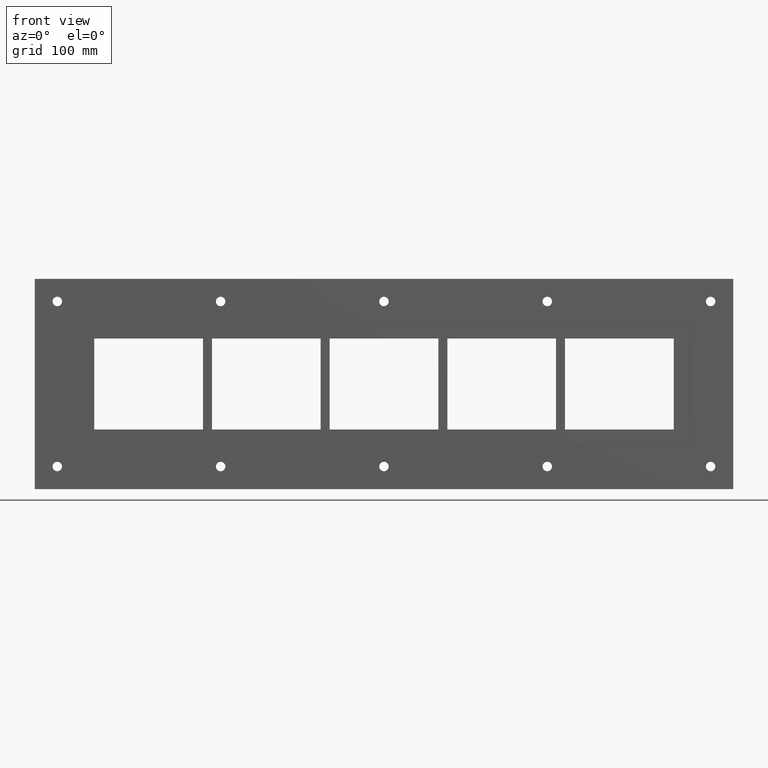
[diagram: clean part render]
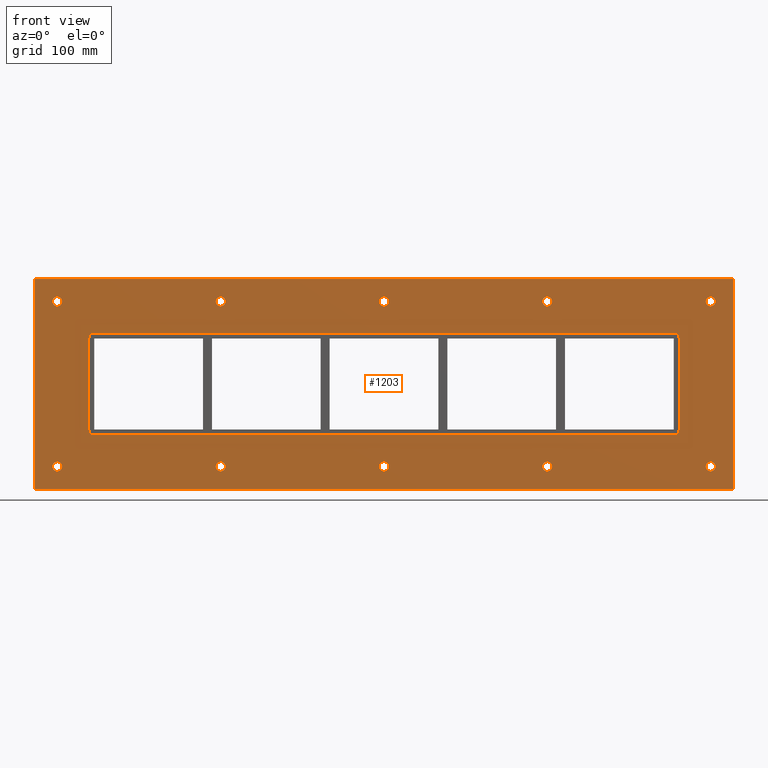
[diagram: same view with one face highlighted and labeled with its STEP entity id]
A machine part, front view. The second image highlights one B-rep face of the part: STEP entity #1203.
In plain terms, the highlighted planar face has unit normal (0, 1, 0).
Its self-contained STEP definition (entity closure, byte-faithful):
#84=CARTESIAN_POINT('',(-357.00000000000017,0.0,-91.499999999999972));
#85=VERTEX_POINT('',#84);
#86=CARTESIAN_POINT('',(-362.25000000000017,0.0,-91.499999999999972));
#87=DIRECTION('',(0.0,1.0,0.0));
#88=DIRECTION('',(1.0,0.0,0.0));
#89=AXIS2_PLACEMENT_3D('',#86,#87,#88);
#90=CIRCLE('',#89,5.25);
#91=EDGE_CURVE('',#85,#85,#90,.T.);
#112=CARTESIAN_POINT('',(-175.90000000000018,0.0,91.500000000000043));
#113=VERTEX_POINT('',#112);
#114=CARTESIAN_POINT('',(-181.15000000000015,0.0,91.500000000000043));
#115=DIRECTION('',(0.0,1.0,0.0));
#116=DIRECTION('',(1.0,0.0,0.0));
#117=AXIS2_PLACEMENT_3D('',#114,#115,#116);
#118=CIRCLE('',#117,5.25);
#119=EDGE_CURVE('',#113,#113,#118,.T.);
#140=CARTESIAN_POINT('',(-175.90000000000009,0.0,-91.499999999999972));
#141=VERTEX_POINT('',#140);
#142=CARTESIAN_POINT('',(-181.15000000000009,0.0,-91.499999999999972));
#143=DIRECTION('',(0.0,1.0,0.0));
#144=DIRECTION('',(1.0,0.0,0.0));
#145=AXIS2_PLACEMENT_3D('',#142,#143,#144);
#146=CIRCLE('',#145,5.25);
#147=EDGE_CURVE('',#141,#141,#146,.T.);
#168=CARTESIAN_POINT('',(5.199999999999818,0.0,91.500000000000043));
#169=VERTEX_POINT('',#168);
#170=CARTESIAN_POINT('',(-0.050000000000168,0.0,91.500000000000043));
#171=DIRECTION('',(0.0,1.0,0.0));
#172=DIRECTION('',(1.0,0.0,0.0));
#173=AXIS2_PLACEMENT_3D('',#170,#171,#172);
#174=CIRCLE('',#173,5.25);
#175=EDGE_CURVE('',#169,#169,#174,.T.);
#196=CARTESIAN_POINT('',(5.199999999999889,0.0,-91.499999999999972));
#197=VERTEX_POINT('',#196);
#198=CARTESIAN_POINT('',(-0.050000000000097,0.0,-91.499999999999972));
#199=DIRECTION('',(0.0,1.0,0.0));
#200=DIRECTION('',(1.0,0.0,0.0));
#201=AXIS2_PLACEMENT_3D('',#198,#199,#200);
#202=CIRCLE('',#201,5.25);
#203=EDGE_CURVE('',#197,#197,#202,.T.);
#224=CARTESIAN_POINT('',(186.29999999999981,0.0,91.500000000000043));
#225=VERTEX_POINT('',#224);
#226=CARTESIAN_POINT('',(181.04999999999984,0.0,91.500000000000043));
#227=DIRECTION('',(0.0,1.0,0.0));
#228=DIRECTION('',(1.0,0.0,0.0));
#229=AXIS2_PLACEMENT_3D('',#226,#227,#228);
#230=CIRCLE('',#229,5.25);
#231=EDGE_CURVE('',#225,#225,#230,.T.);
#252=CARTESIAN_POINT('',(186.2999999999999,0.0,-91.499999999999972));
#253=VERTEX_POINT('',#252);
#254=CARTESIAN_POINT('',(181.0499999999999,0.0,-91.499999999999972));
#255=DIRECTION('',(0.0,1.0,0.0));
#256=DIRECTION('',(1.0,0.0,0.0));
#257=AXIS2_PLACEMENT_3D('',#254,#255,#256);
#258=CIRCLE('',#257,5.25);
#259=EDGE_CURVE('',#253,#253,#258,.T.);
#280=CARTESIAN_POINT('',(367.39999999999986,0.0,-91.499999999999972));
#281=VERTEX_POINT('',#280);
#282=CARTESIAN_POINT('',(362.14999999999986,0.0,-91.499999999999972));
#283=DIRECTION('',(0.0,1.0,0.0));
#284=DIRECTION('',(1.0,0.0,0.0));
#285=AXIS2_PLACEMENT_3D('',#282,#283,#284);
#286=CIRCLE('',#285,5.25);
#287=EDGE_CURVE('',#281,#281,#286,.T.);
#308=CARTESIAN_POINT('',(-357.00000000000017,0.0,91.500000000000043));
#309=VERTEX_POINT('',#308);
#310=CARTESIAN_POINT('',(-362.25000000000017,0.0,91.500000000000043));
#311=DIRECTION('',(0.0,1.0,0.0));
#312=DIRECTION('',(1.0,0.0,0.0));
#313=AXIS2_PLACEMENT_3D('',#310,#311,#312);
#314=CIRCLE('',#313,5.25);
#315=EDGE_CURVE('',#309,#309,#314,.T.);
#336=CARTESIAN_POINT('',(367.39999999999981,0.0,91.500000000000043));
#337=VERTEX_POINT('',#336);
#338=CARTESIAN_POINT('',(362.14999999999981,0.0,91.500000000000043));
#339=DIRECTION('',(0.0,1.0,0.0));
#340=DIRECTION('',(1.0,0.0,0.0));
#341=AXIS2_PLACEMENT_3D('',#338,#339,#340);
#342=CIRCLE('',#341,5.25);
#343=EDGE_CURVE('',#337,#337,#342,.T.);
#1064=CARTESIAN_POINT('',(0.0,0.0,0.0));
#1065=DIRECTION('',(0.0,1.0,0.0));
#1066=DIRECTION('',(0.0,0.0,1.0));
#1067=AXIS2_PLACEMENT_3D('',#1064,#1065,#1066);
#1068=PLANE('',#1067);
#1069=CARTESIAN_POINT('',(-387.25000000000011,0.0,116.49999999999997));
#1070=VERTEX_POINT('',#1069);
#1071=CARTESIAN_POINT('',(387.25000000000011,0.0,116.49999999999997));
#1072=VERTEX_POINT('',#1071);
#1073=CARTESIAN_POINT('',(-387.25000000000011,0.0,116.49999999999997));
#1074=DIRECTION('',(1.0,0.0,0.0));
#1075=VECTOR('',#1074,774.50000000000023);
#1076=LINE('',#1073,#1075);
#1077=EDGE_CURVE('',#1070,#1072,#1076,.T.);
#1078=ORIENTED_EDGE('',*,*,#1077,.F.);
#1079=CARTESIAN_POINT('',(-387.25000000000011,0.0,-116.49999999999997));
#1080=VERTEX_POINT('',#1079);
#1081=CARTESIAN_POINT('',(-387.25000000000011,0.0,-116.49999999999997));
#1082=DIRECTION('',(0.0,0.0,1.0));
#1083=VECTOR('',#1082,232.99999999999994);
#1084=LINE('',#1081,#1083);
#1085=EDGE_CURVE('',#1080,#1070,#1084,.T.);
#1086=ORIENTED_EDGE('',*,*,#1085,.F.);
#1087=CARTESIAN_POINT('',(387.25000000000011,0.0,-116.49999999999997));
#1088=VERTEX_POINT('',#1087);
#1089=CARTESIAN_POINT('',(387.25000000000011,0.0,-116.49999999999997));
#1090=DIRECTION('',(-1.0,0.0,0.0));
#1091=VECTOR('',#1090,774.50000000000023);
#1092=LINE('',#1089,#1091);
#1093=EDGE_CURVE('',#1088,#1080,#1092,.T.);
#1094=ORIENTED_EDGE('',*,*,#1093,.F.);
#1095=CARTESIAN_POINT('',(387.25000000000011,0.0,116.49999999999997));
#1096=DIRECTION('',(0.0,0.0,-1.0));
#1097=VECTOR('',#1096,232.99999999999994);
#1098=LINE('',#1095,#1097);
#1099=EDGE_CURVE('',#1072,#1088,#1098,.T.);
#1100=ORIENTED_EDGE('',*,*,#1099,.F.);
#1101=EDGE_LOOP('',(#1078,#1086,#1094,#1100));
#1102=FACE_OUTER_BOUND('',#1101,.T.);
#1103=ORIENTED_EDGE('',*,*,#91,.T.);
#1104=EDGE_LOOP('',(#1103));
#1105=FACE_BOUND('',#1104,.T.);
#1106=ORIENTED_EDGE('',*,*,#119,.T.);
#1107=EDGE_LOOP('',(#1106));
#1108=FACE_BOUND('',#1107,.T.);
#1109=ORIENTED_EDGE('',*,*,#147,.T.);
#1110=EDGE_LOOP('',(#1109));
#1111=FACE_BOUND('',#1110,.T.);
#1112=ORIENTED_EDGE('',*,*,#175,.T.);
#1113=EDGE_LOOP('',(#1112));
#1114=FACE_BOUND('',#1113,.T.);
#1115=ORIENTED_EDGE('',*,*,#203,.T.);
#1116=EDGE_LOOP('',(#1115));
#1117=FACE_BOUND('',#1116,.T.);
#1118=ORIENTED_EDGE('',*,*,#231,.T.);
#1119=EDGE_LOOP('',(#1118));
#1120=FACE_BOUND('',#1119,.T.);
#1121=ORIENTED_EDGE('',*,*,#259,.T.);
#1122=EDGE_LOOP('',(#1121));
#1123=FACE_BOUND('',#1122,.T.);
#1124=ORIENTED_EDGE('',*,*,#287,.T.);
#1125=EDGE_LOOP('',(#1124));
#1126=FACE_BOUND('',#1125,.T.);
#1127=ORIENTED_EDGE('',*,*,#315,.T.);
#1128=EDGE_LOOP('',(#1127));
#1129=FACE_BOUND('',#1128,.T.);
#1130=ORIENTED_EDGE('',*,*,#343,.T.);
#1131=EDGE_LOOP('',(#1130));
#1132=FACE_BOUND('',#1131,.T.);
#1133=CARTESIAN_POINT('',(-327.25,0.0,-50.499999999999986));
#1134=VERTEX_POINT('',#1133);
#1135=CARTESIAN_POINT('',(-321.25,0.0,-56.499999999999986));
#1136=VERTEX_POINT('',#1135);
#1137=CARTESIAN_POINT('',(-321.25,0.0,-50.499999999999986));
#1138=DIRECTION('',(0.0,-1.0,0.0));
#1139=DIRECTION('',(-0.707106781186544,0.0,-0.707106781186551));
#1140=AXIS2_PLACEMENT_3D('',#1137,#1138,#1139);
#1141=CIRCLE('',#1140,6.0);
#1142=EDGE_CURVE('',#1134,#1136,#1141,.T.);
#1143=ORIENTED_EDGE('',*,*,#1142,.F.);
#1144=CARTESIAN_POINT('',(-327.25,0.0,50.499999999999986));
#1145=VERTEX_POINT('',#1144);
#1146=CARTESIAN_POINT('',(-327.25,0.0,50.499999999999993));
#1147=DIRECTION('',(0.0,0.0,-1.0));
#1148=VECTOR('',#1147,100.99999999999997);
#1149=LINE('',#1146,#1148);
#1150=EDGE_CURVE('',#1145,#1134,#1149,.T.);
#1151=ORIENTED_EDGE('',*,*,#1150,.F.);
#1152=CARTESIAN_POINT('',(-321.25,0.0,56.499999999999986));
#1153=VERTEX_POINT('',#1152);
#1154=CARTESIAN_POINT('',(-321.25,0.0,50.499999999999986));
#1155=DIRECTION('',(0.0,-1.0,0.0));
#1156=DIRECTION('',(-0.707106781186544,0.0,0.707106781186551));
#1157=AXIS2_PLACEMENT_3D('',#1154,#1155,#1156);
#1158=CIRCLE('',#1157,6.0);
#1159=EDGE_CURVE('',#1153,#1145,#1158,.T.);
#1160=ORIENTED_EDGE('',*,*,#1159,.F.);
#1161=CARTESIAN_POINT('',(321.25,0.0,56.499999999999986));
#1162=VERTEX_POINT('',#1161);
#1163=CARTESIAN_POINT('',(321.25,0.0,56.499999999999986));
#1164=DIRECTION('',(-1.0,0.0,0.0));
#1165=VECTOR('',#1164,642.5);
#1166=LINE('',#1163,#1165);
#1167=EDGE_CURVE('',#1162,#1153,#1166,.T.);
#1168=ORIENTED_EDGE('',*,*,#1167,.F.);
#1169=CARTESIAN_POINT('',(327.25,0.0,50.499999999999986));
#1170=VERTEX_POINT('',#1169);
#1171=CARTESIAN_POINT('',(321.25,0.0,50.499999999999986));
#1172=DIRECTION('',(0.0,-1.0,0.0));
#1173=DIRECTION('',(0.707106781186544,0.0,0.707106781186551));
#1174=AXIS2_PLACEMENT_3D('',#1171,#1172,#1173);
#1175=CIRCLE('',#1174,6.0);
#1176=EDGE_CURVE('',#1170,#1162,#1175,.T.);
#1177=ORIENTED_EDGE('',*,*,#1176,.F.);
#1178=CARTESIAN_POINT('',(327.25,0.0,-50.499999999999986));
#1179=VERTEX_POINT('',#1178);
#1180=CARTESIAN_POINT('',(327.25,0.0,-50.499999999999993));
#1181=DIRECTION('',(0.0,0.0,1.0));
#1182=VECTOR('',#1181,100.99999999999997);
#1183=LINE('',#1180,#1182);
#1184=EDGE_CURVE('',#1179,#1170,#1183,.T.);
#1185=ORIENTED_EDGE('',*,*,#1184,.F.);
#1186=CARTESIAN_POINT('',(321.25,0.0,-56.499999999999986));
#1187=VERTEX_POINT('',#1186);
#1188=CARTESIAN_POINT('',(321.25,0.0,-50.499999999999986));
#1189=DIRECTION('',(0.0,-1.0,0.0));
#1190=DIRECTION('',(0.707106781186544,0.0,-0.707106781186551));
#1191=AXIS2_PLACEMENT_3D('',#1188,#1189,#1190);
#1192=CIRCLE('',#1191,6.0);
#1193=EDGE_CURVE('',#1187,#1179,#1192,.T.);
#1194=ORIENTED_EDGE('',*,*,#1193,.F.);
#1195=CARTESIAN_POINT('',(-321.25,0.0,-56.499999999999986));
#1196=DIRECTION('',(1.0,0.0,0.0));
#1197=VECTOR('',#1196,642.5);
#1198=LINE('',#1195,#1197);
#1199=EDGE_CURVE('',#1136,#1187,#1198,.T.);
#1200=ORIENTED_EDGE('',*,*,#1199,.F.);
#1201=EDGE_LOOP('',(#1143,#1151,#1160,#1168,#1177,#1185,#1194,#1200));
#1202=FACE_BOUND('',#1201,.T.);
#1203=ADVANCED_FACE('',(#1102,#1105,#1108,#1111,#1114,#1117,#1120,#1123,#1126,#1129,#1132,#1202),#1068,.F.);